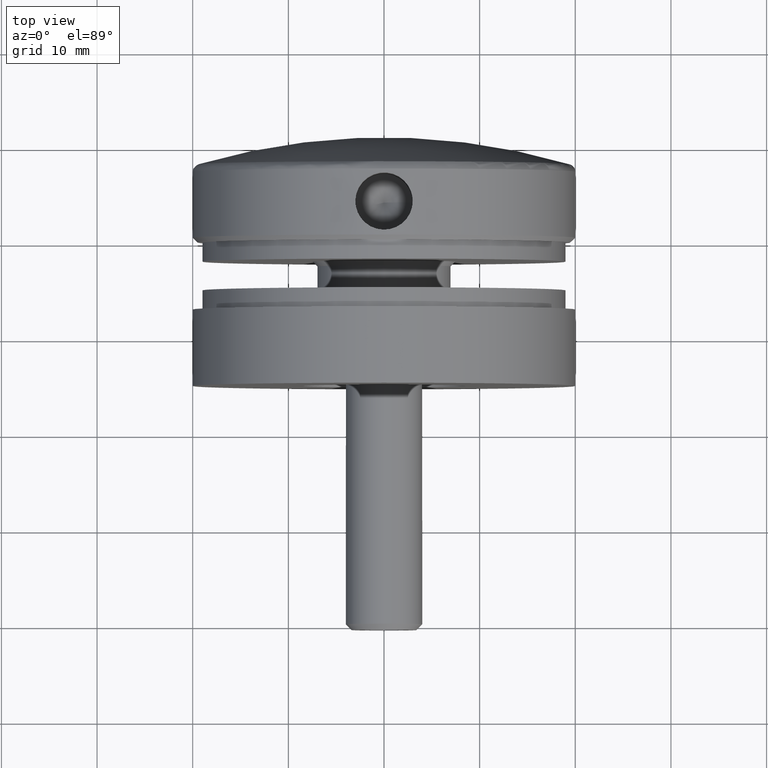
[diagram: clean part render]
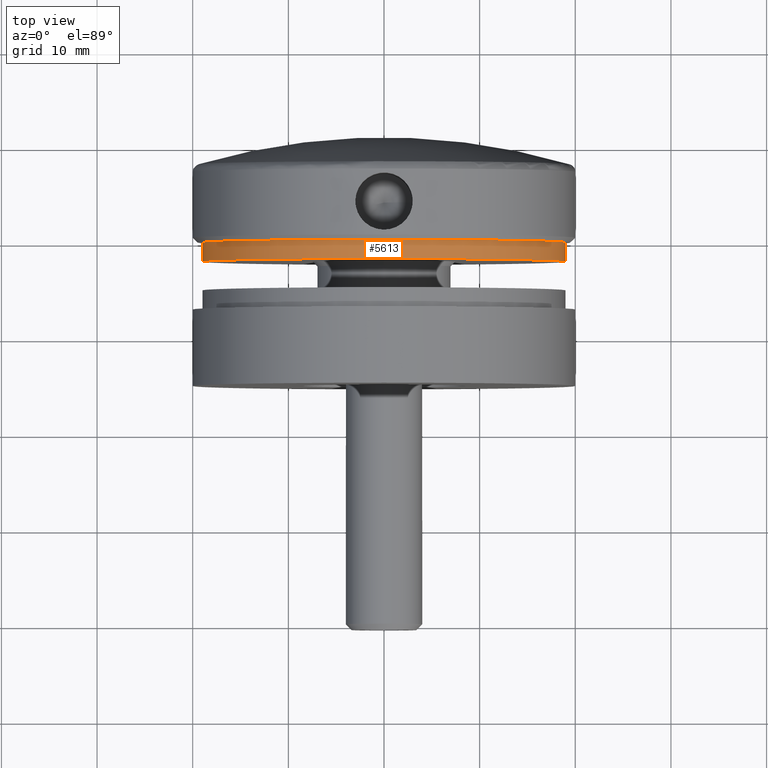
[diagram: same view with one face highlighted and labeled with its STEP entity id]
A machine part, top view. The second image highlights one B-rep face of the part: STEP entity #5613.
In plain terms, the highlighted cylindrical surface (bore or boss wall) has radius 19 mm, axis along (0, 1, -0).
Its self-contained STEP definition (entity closure, byte-faithful):
#83 = DIRECTION ( 'NONE',  ( -3.489561605496402237E-47, -1.000000000000000000, 1.861099522931397672E-46 ) ) ;
#1403 = EDGE_LOOP ( 'NONE', ( #5500 ) ) ;
#1429 = DIRECTION ( 'NONE',  ( -5.880569790208264730E-78, 1.888468633562712974E-46, -1.000000000000000000 ) ) ;
#1496 = DIRECTION ( 'NONE',  ( -3.489561605496402237E-47, -1.000000000000000000, 1.861099522931397672E-46 ) ) ;
#1637 = CIRCLE ( 'NONE', #4226, 19.00000000000028777 ) ;
#1759 = FACE_OUTER_BOUND ( 'NONE', #8533, .T. ) ;
#2171 = CARTESIAN_POINT ( 'NONE',  ( -1.117308260139587212E-76, 3.588090403769209336E-45, -19.00000000000028777 ) ) ;
#3280 = CARTESIAN_POINT ( 'NONE',  ( 2.052683297350810510E-48, 2.000000000000000000, -19.00000000000028777 ) ) ;
#3290 = CARTESIAN_POINT ( 'NONE',  ( 0.000000000000000000, 0.000000000000000000, 0.000000000000000000 ) ) ;
#3721 = VERTEX_POINT ( 'NONE', #3280 ) ;
#3757 = DIRECTION ( 'NONE',  ( -5.880569790208264730E-78, 1.888468633562712974E-46, -1.000000000000000000 ) ) ;
#4226 = AXIS2_PLACEMENT_3D ( 'NONE', #7395, #13179, #14271 ) ;
#4811 = FACE_OUTER_BOUND ( 'NONE', #1403, .T. ) ;
#5500 = ORIENTED_EDGE ( 'NONE', *, *, #12436, .F. ) ;
#5613 = ADVANCED_FACE ( 'NONE', ( #1759, #4811 ), #6857, .T. ) ;
#6857 = CYLINDRICAL_SURFACE ( 'NONE', #8878, 19.00000000000028777 ) ;
#7395 = CARTESIAN_POINT ( 'NONE',  ( 2.052683297350810510E-48, 2.000000000000000000, -1.069105884036878258E-47 ) ) ;
#8240 = VERTEX_POINT ( 'NONE', #2171 ) ;
#8363 = CARTESIAN_POINT ( 'NONE',  ( 0.000000000000000000, 0.000000000000000000, 0.000000000000000000 ) ) ;
#8533 = EDGE_LOOP ( 'NONE', ( #12979 ) ) ;
#8878 = AXIS2_PLACEMENT_3D ( 'NONE', #3290, #83, #1429 ) ;
#9721 = AXIS2_PLACEMENT_3D ( 'NONE', #8363, #1496, #3757 ) ;
#9743 = CIRCLE ( 'NONE', #9721, 19.00000000000028777 ) ;
#11071 = EDGE_CURVE ( 'NONE', #3721, #3721, #1637, .T. ) ;
#12436 = EDGE_CURVE ( 'NONE', #8240, #8240, #9743, .T. ) ;
#12979 = ORIENTED_EDGE ( 'NONE', *, *, #11071, .T. ) ;
#13179 = DIRECTION ( 'NONE',  ( -3.489561605496402237E-47, -1.000000000000000000, 1.861099522931397672E-46 ) ) ;
#14271 = DIRECTION ( 'NONE',  ( 0.000000000000000000, 0.000000000000000000, -1.000000000000000000 ) ) ;